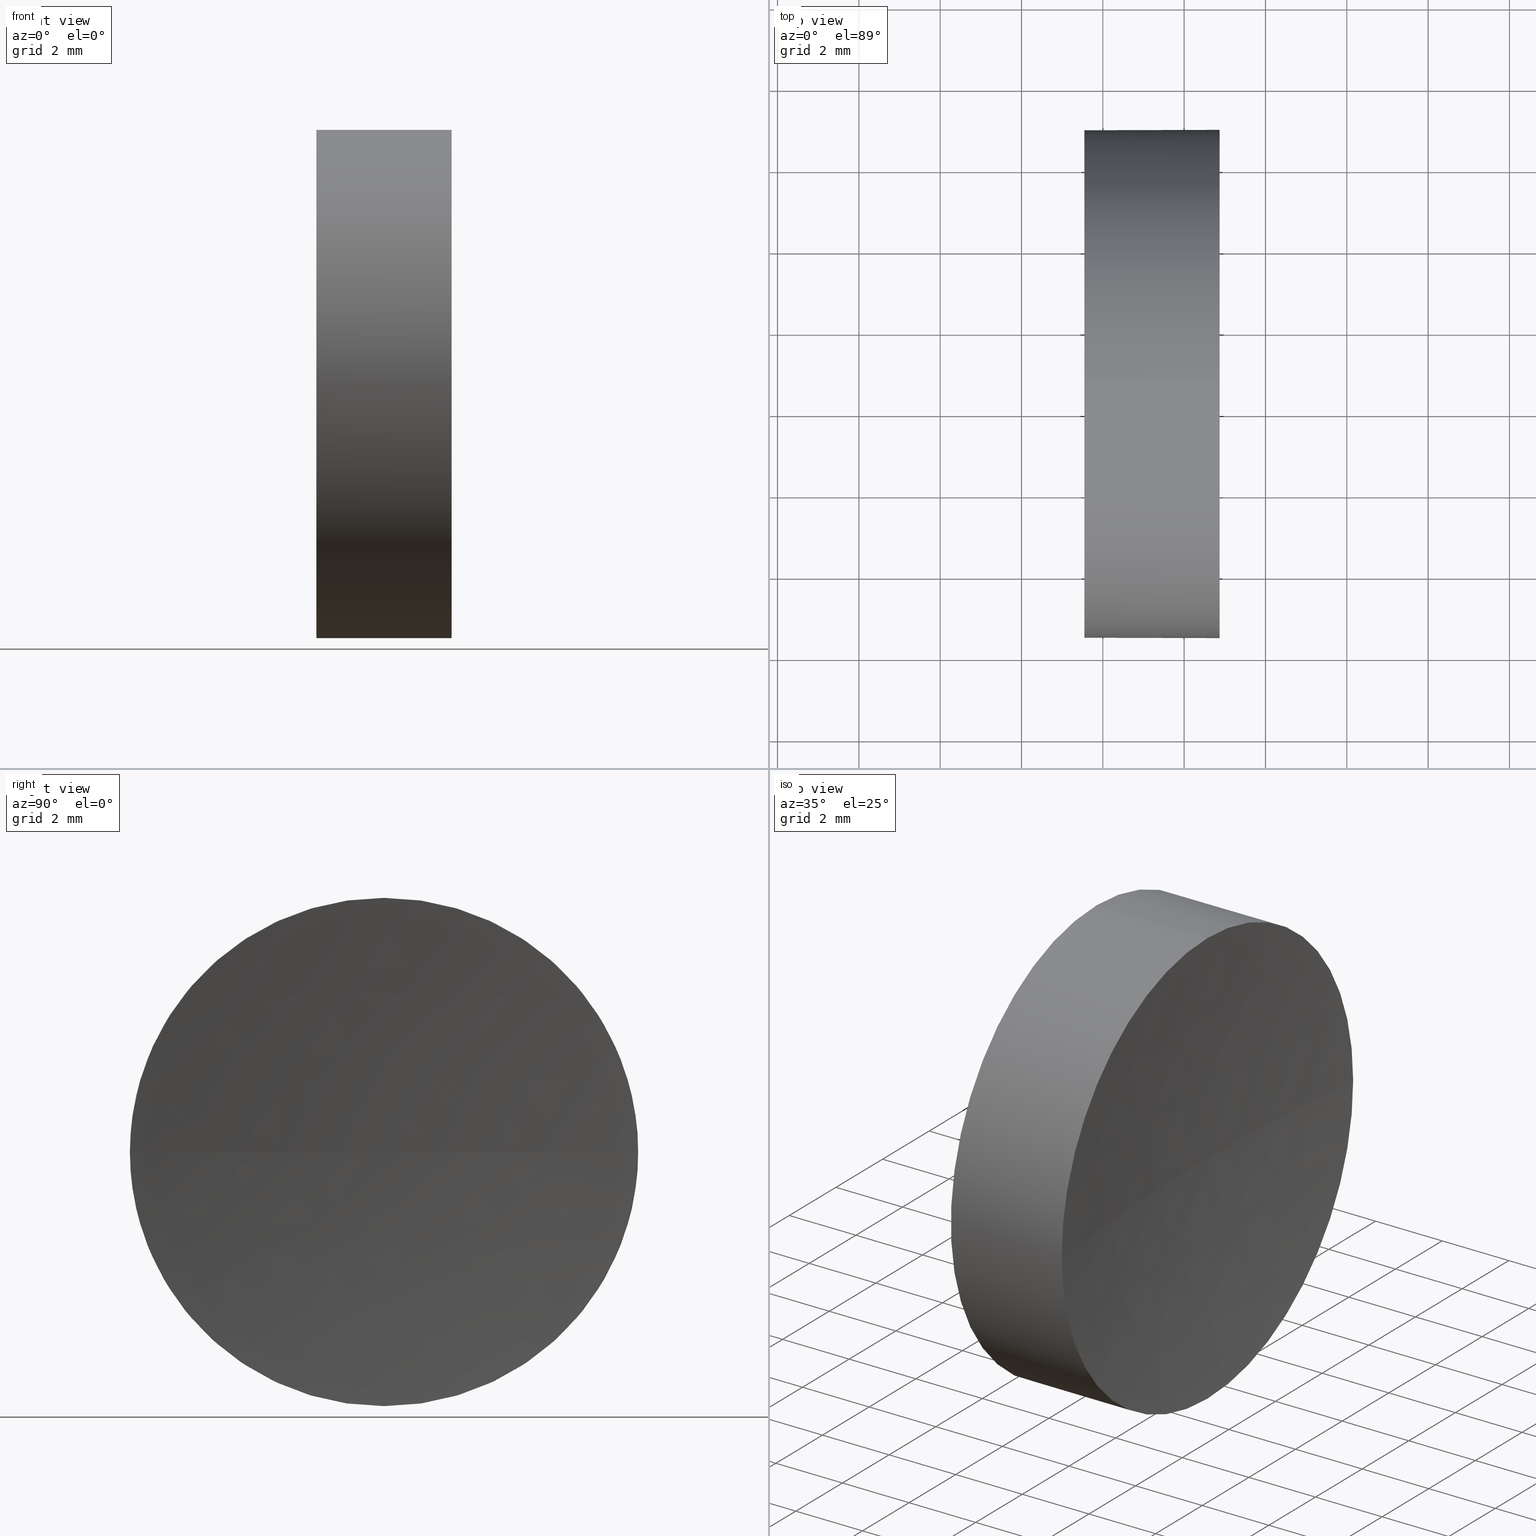
[diagram: canonical four-view strip — front | top / right | iso, engineering-drawing reading convention]
A machine part, canonical four-view strip (front | top / right | iso — engineering-drawing reading convention). The complete STEP part file that produces these views, byte-faithful:
ISO-10303-21;
HEADER;
FILE_DESCRIPTION (( 'STEP AP214' ),
    '1' );
FILE_NAME ('270005.STEP',
    '2019-07-22T02:30:44',
    ( '' ),
    ( '' ),
    'SwSTEP 2.0',
    'SolidWorks 2016',
    '' );
FILE_SCHEMA (( 'AUTOMOTIVE_DESIGN' ));
ENDSEC;

DATA;
#1 = CARTESIAN_POINT ( 'NONE',  ( 120.5463276019670400, 34.68901056168622400, 0.0000000000000000000 ) ) ;
#2 = CIRCLE ( 'NONE', #29, 6.249999999999998200 ) ;
#3 =( GEOMETRIC_REPRESENTATION_CONTEXT ( 3 ) GLOBAL_UNCERTAINTY_ASSIGNED_CONTEXT ( ( #155 ) ) GLOBAL_UNIT_ASSIGNED_CONTEXT ( ( #65, #32, #163 ) ) REPRESENTATION_CONTEXT ( 'NONE', 'WORKASPACE' ) );
#4 = CARTESIAN_POINT ( 'NONE',  ( 54.49257150108255100, 34.68901056168621700, 0.0000000000000000000 ) ) ;
#5 = MANIFOLD_SOLID_BREP ( '��ת1', #125 ) ;
#6 = ORIENTED_EDGE ( 'NONE', *, *, #128, .F. ) ;
#7 = DIRECTION ( 'NONE',  ( 0.0000000000000000000, 0.0000000000000000000, 1.000000000000000000 ) ) ;
#8 = DIRECTION ( 'NONE',  ( 0.0000000000000000000, 0.0000000000000000000, 1.000000000000000000 ) ) ;
#9 = CARTESIAN_POINT ( 'NONE',  ( 54.49257150108255100, 34.68901056168621700, 6.250000000000005300 ) ) ;
#10 = DIRECTION ( 'NONE',  ( 0.0000000000000000000, -1.000000000000000000, 0.0000000000000000000 ) ) ;
#11 = CIRCLE ( 'NONE', #79, 6.250000000000012400 ) ;
#12 = CARTESIAN_POINT ( 'NONE',  ( 57.54632776745975800, 34.68901056168621700, -6.249999999999998200 ) ) ;
#13 =( LENGTH_UNIT ( ) NAMED_UNIT ( * ) SI_UNIT ( .MILLI., .METRE. ) );
#14 = ORIENTED_EDGE ( 'NONE', *, *, #84, .T. ) ;
#15 = EDGE_CURVE ( 'NONE', #175, #169, #27, .T. ) ;
#16 = FILL_AREA_STYLE_COLOUR ( '', #127 ) ;
#17 =( GEOMETRIC_REPRESENTATION_CONTEXT ( 3 ) GLOBAL_UNCERTAINTY_ASSIGNED_CONTEXT ( ( #45 ) ) GLOBAL_UNIT_ASSIGNED_CONTEXT ( ( #170, #56, #99 ) ) REPRESENTATION_CONTEXT ( 'NONE', 'WORKASPACE' ) );
#18 = SURFACE_STYLE_FILL_AREA ( #47 ) ;
#19 = ORIENTED_EDGE ( 'NONE', *, *, #133, .T. ) ;
#20 = SURFACE_SIDE_STYLE ('',( #18 ) ) ;
#21 = AXIS2_PLACEMENT_3D ( 'NONE', #34, #181, #8 ) ;
#22 = CARTESIAN_POINT ( 'NONE',  ( 120.5463276019670400, 34.68901056168622400, 0.0000000000000000000 ) ) ;
#23 = EDGE_LOOP ( 'NONE', ( #43, #126 ) ) ;
#24 = DIRECTION ( 'NONE',  ( -1.000000000000000000, -0.0000000000000000000, -0.0000000000000000000 ) ) ;
#25 = CARTESIAN_POINT ( 'NONE',  ( 60.87273629056698400, 34.68901056168621700, 0.0000000000000000000 ) ) ;
#26 = ORIENTED_EDGE ( 'NONE', *, *, #68, .T. ) ;
#27 = LINE ( 'NONE', #105, #30 ) ;
#28 = ORIENTED_EDGE ( 'NONE', *, *, #15, .T. ) ;
#29 = AXIS2_PLACEMENT_3D ( 'NONE', #119, #132, #66 ) ;
#30 = VECTOR ( 'NONE', #116, 1000.000000000000000 ) ;
#31 = ORIENTED_EDGE ( 'NONE', *, *, #84, .F. ) ;
#32 =( NAMED_UNIT ( * ) PLANE_ANGLE_UNIT ( ) SI_UNIT ( $, .RADIAN. ) );
#33 = MECHANICAL_DESIGN_GEOMETRIC_PRESENTATION_REPRESENTATION (  '', ( #50 ), #3 ) ;
#34 = CARTESIAN_POINT ( 'NONE',  ( 60.87273629056698400, 34.68901056168621700, 0.0000000000000000000 ) ) ;
#35 = CARTESIAN_POINT ( 'NONE',  ( 60.87273629056698400, 28.43901056168619900, 0.0000000000000000000 ) ) ;
#36 = DIRECTION ( 'NONE',  ( 1.000000000000000000, 0.0000000000000000000, 0.0000000000000000000 ) ) ;
#37 = SURFACE_STYLE_USAGE ( .BOTH. , #141 ) ;
#38 = ADVANCED_FACE ( 'NONE', ( #136 ), #100, .T. ) ;
#39 = PRESENTATION_STYLE_ASSIGNMENT (( #63 ) ) ;
#40 = AXIS2_PLACEMENT_3D ( 'NONE', #152, #110, #53 ) ;
#41 =( NAMED_UNIT ( * ) PLANE_ANGLE_UNIT ( ) SI_UNIT ( $, .RADIAN. ) );
#42 = CIRCLE ( 'NONE', #97, 60.00000000000000700 ) ;
#43 = ORIENTED_EDGE ( 'NONE', *, *, #128, .T. ) ;
#44 = CIRCLE ( 'NONE', #182, 60.00000000000000700 ) ;
#45 = UNCERTAINTY_MEASURE_WITH_UNIT (LENGTH_MEASURE( 1.000000000000000100E-005 ), #170, 'distance_accuracy_value', 'NONE');
#46 = CARTESIAN_POINT ( 'NONE',  ( 54.49257150108255100, 34.68901056168621700, 0.0000000000000000000 ) ) ;
#47 = FILL_AREA_STYLE ('',( #104 ) ) ;
#48 = ORIENTED_EDGE ( 'NONE', *, *, #143, .F. ) ;
#49 = DIRECTION ( 'NONE',  ( -1.000000000000000000, -0.0000000000000000000, -0.0000000000000000000 ) ) ;
#50 = STYLED_ITEM ( 'NONE', ( #39 ), #5 ) ;
#51 = DIRECTION ( 'NONE',  ( 0.0000000000000000000, -1.000000000000000000, 0.0000000000000000000 ) ) ;
#52 = CIRCLE ( 'NONE', #40, 6.250000000000012400 ) ;
#53 = DIRECTION ( 'NONE',  ( 0.0000000000000000000, 0.0000000000000000000, 1.000000000000000000 ) ) ;
#54 = DIRECTION ( 'NONE',  ( 0.0000000000000000000, -1.000000000000000000, -1.224646799147353200E-016 ) ) ;
#55 = PRODUCT_DEFINITION ( 'δ֪', '', #75, #176 ) ;
#56 =( NAMED_UNIT ( * ) PLANE_ANGLE_UNIT ( ) SI_UNIT ( $, .RADIAN. ) );
#57 = APPLICATION_PROTOCOL_DEFINITION ( 'draft international standard', 'automotive_design', 1998, #86 ) ;
#58 = ADVANCED_FACE ( 'NONE', ( #148 ), #87, .T. ) ;
#59 = ORIENTED_EDGE ( 'NONE', *, *, #153, .F. ) ;
#60 = AXIS2_PLACEMENT_3D ( 'NONE', #108, #83, #180 ) ;
#61 = ORIENTED_EDGE ( 'NONE', *, *, #149, .F. ) ;
#62 = AXIS2_PLACEMENT_3D ( 'NONE', #135, #24, #122 ) ;
#63 = SURFACE_STYLE_USAGE ( .BOTH. , #20 ) ;
#64 = AXIS2_PLACEMENT_3D ( 'NONE', #46, #118, #77 ) ;
#65 =( LENGTH_UNIT ( ) NAMED_UNIT ( * ) SI_UNIT ( .MILLI., .METRE. ) );
#66 = DIRECTION ( 'NONE',  ( 0.0000000000000000000, 0.0000000000000000000, 1.000000000000000000 ) ) ;
#67 = CARTESIAN_POINT ( 'NONE',  ( 120.5463276019670400, 34.68901056168622400, 0.0000000000000000000 ) ) ;
#68 = EDGE_CURVE ( 'NONE', #184, #175, #130, .T. ) ;
#69 = SURFACE_STYLE_FILL_AREA ( #171 ) ;
#70 = CARTESIAN_POINT ( 'NONE',  ( 120.5463276019670400, 34.68901056168622400, 0.0000000000000000000 ) ) ;
#71 = ADVANCED_FACE ( 'NONE', ( #121 ), #154, .F. ) ;
#72 = SHAPE_DEFINITION_REPRESENTATION ( #158, #174 ) ;
#73 = AXIS2_PLACEMENT_3D ( 'NONE', #92, #140, #36 ) ;
#74 = ADVANCED_FACE ( 'NONE', ( #89 ), #173, .F. ) ;
#75 = PRODUCT_DEFINITION_FORMATION_WITH_SPECIFIED_SOURCE ( '�κ�', '', #168, .NOT_KNOWN. ) ;
#76 = DIRECTION ( 'NONE',  ( 0.0000000000000000000, 0.0000000000000000000, 1.000000000000000000 ) ) ;
#77 = DIRECTION ( 'NONE',  ( 0.0000000000000000000, 0.0000000000000000000, 1.000000000000000000 ) ) ;
#78 = ORIENTED_EDGE ( 'NONE', *, *, #133, .F. ) ;
#79 = AXIS2_PLACEMENT_3D ( 'NONE', #25, #80, #107 ) ;
#80 = DIRECTION ( 'NONE',  ( -1.000000000000000000, -0.0000000000000000000, -0.0000000000000000000 ) ) ;
#81 = DIRECTION ( 'NONE',  ( 0.0000000000000000000, 0.0000000000000000000, 1.000000000000000000 ) ) ;
#82 = VECTOR ( 'NONE', #123, 1000.000000000000000 ) ;
#83 = DIRECTION ( 'NONE',  ( -1.000000000000000000, -0.0000000000000000000, -0.0000000000000000000 ) ) ;
#84 = EDGE_CURVE ( 'NONE', #101, #96, #44, .T. ) ;
#85 = ORIENTED_EDGE ( 'NONE', *, *, #143, .T. ) ;
#86 = APPLICATION_CONTEXT ( 'automotive_design' ) ;
#87 = CYLINDRICAL_SURFACE ( 'NONE', #64, 6.250000000000005300 ) ;
#88 = EDGE_LOOP ( 'NONE', ( #26, #28, #6, #59, #19 ) ) ;
#89 = FACE_OUTER_BOUND ( 'NONE', #131, .T. ) ;
#90 = AXIS2_PLACEMENT_3D ( 'NONE', #4, #49, #7 ) ;
#91 = UNCERTAINTY_MEASURE_WITH_UNIT (LENGTH_MEASURE( 1.000000000000000100E-005 ), #13, 'distance_accuracy_value', 'NONE');
#92 = CARTESIAN_POINT ( 'NONE',  ( 0.0000000000000000000, 0.0000000000000000000, 0.0000000000000000000 ) ) ;
#93 = ORIENTED_EDGE ( 'NONE', *, *, #68, .F. ) ;
#94 = PLANE ( 'NONE',  #114 ) ;
#95 = PRODUCT_CONTEXT ( 'NONE', #142, 'mechanical' ) ;
#96 = VERTEX_POINT ( 'NONE', #151 ) ;
#97 = AXIS2_PLACEMENT_3D ( 'NONE', #70, #137, #54 ) ;
#98 = ORIENTED_EDGE ( 'NONE', *, *, #149, .T. ) ;
#99 =( NAMED_UNIT ( * ) SI_UNIT ( $, .STERADIAN. ) SOLID_ANGLE_UNIT ( ) );
#100 = CYLINDRICAL_SURFACE ( 'NONE', #90, 6.250000000000005300 ) ;
#101 = VERTEX_POINT ( 'NONE', #35 ) ;
#102 = PRESENTATION_STYLE_ASSIGNMENT (( #37 ) ) ;
#103 = AXIS2_PLACEMENT_3D ( 'NONE', #1, #76, #51 ) ;
#104 = FILL_AREA_STYLE_COLOUR ( '', #145 ) ;
#105 = CARTESIAN_POINT ( 'NONE',  ( 54.49257150108255100, 34.68901056168621700, -6.250000000000005300 ) ) ;
#106 = EDGE_CURVE ( 'NONE', #169, #129, #178, .T. ) ;
#107 = DIRECTION ( 'NONE',  ( 0.0000000000000000000, 0.0000000000000000000, 1.000000000000000000 ) ) ;
#108 = CARTESIAN_POINT ( 'NONE',  ( 60.87273629056698400, 34.68901056168621700, 0.0000000000000000000 ) ) ;
#109 = ORIENTED_EDGE ( 'NONE', *, *, #161, .T. ) ;
#110 = DIRECTION ( 'NONE',  ( -1.000000000000000000, -0.0000000000000000000, -0.0000000000000000000 ) ) ;
#111 =( NAMED_UNIT ( * ) SI_UNIT ( $, .STERADIAN. ) SOLID_ANGLE_UNIT ( ) );
#112 = AXIS2_PLACEMENT_3D ( 'NONE', #67, #81, #10 ) ;
#113 = EDGE_LOOP ( 'NONE', ( #185, #78, #61, #14 ) ) ;
#114 = AXIS2_PLACEMENT_3D ( 'NONE', #166, #156, #157 ) ;
#115 = LINE ( 'NONE', #9, #82 ) ;
#116 = DIRECTION ( 'NONE',  ( -1.000000000000000000, -0.0000000000000000000, -0.0000000000000000000 ) ) ;
#117 = STYLED_ITEM ( 'NONE', ( #102 ), #174 ) ;
#118 = DIRECTION ( 'NONE',  ( -1.000000000000000000, -0.0000000000000000000, -0.0000000000000000000 ) ) ;
#119 = CARTESIAN_POINT ( 'NONE',  ( 57.54632776745975800, 34.68901056168621700, 0.0000000000000000000 ) ) ;
#120 = CARTESIAN_POINT ( 'NONE',  ( 60.87273629056698400, 34.68901056168621700, 6.250000000000012400 ) ) ;
#121 = FACE_OUTER_BOUND ( 'NONE', #113, .T. ) ;
#122 = DIRECTION ( 'NONE',  ( 0.0000000000000000000, 0.0000000000000000000, 1.000000000000000000 ) ) ;
#123 = DIRECTION ( 'NONE',  ( -1.000000000000000000, -0.0000000000000000000, -0.0000000000000000000 ) ) ;
#124 = DIRECTION ( 'NONE',  ( 0.0000000000000000000, 0.0000000000000000000, -1.000000000000000000 ) ) ;
#125 = CLOSED_SHELL ( 'NONE', ( #58, #74, #71, #38, #186 ) ) ;
#126 = ORIENTED_EDGE ( 'NONE', *, *, #106, .T. ) ;
#127 = COLOUR_RGB ( '',1.000000000000000000, 1.000000000000000000, 1.000000000000000000 ) ;
#128 = EDGE_CURVE ( 'NONE', #129, #169, #2, .T. ) ;
#129 = VERTEX_POINT ( 'NONE', #167 ) ;
#130 = CIRCLE ( 'NONE', #21, 6.250000000000012400 ) ;
#131 = EDGE_LOOP ( 'NONE', ( #93, #109, #31, #48 ) ) ;
#132 = DIRECTION ( 'NONE',  ( -1.000000000000000000, -0.0000000000000000000, -0.0000000000000000000 ) ) ;
#133 = EDGE_CURVE ( 'NONE', #160, #184, #52, .T. ) ;
#134 = ORIENTED_EDGE ( 'NONE', *, *, #15, .F. ) ;
#135 = CARTESIAN_POINT ( 'NONE',  ( 57.54632776745975800, 34.68901056168621700, 0.0000000000000000000 ) ) ;
#136 = FACE_OUTER_BOUND ( 'NONE', #165, .T. ) ;
#137 = DIRECTION ( 'NONE',  ( 0.0000000000000000000, -1.224646799147353200E-016, 1.000000000000000000 ) ) ;
#138 = APPLICATION_PROTOCOL_DEFINITION ( 'draft international standard', 'automotive_design', 1998, #142 ) ;
#139 = PRESENTATION_LAYER_ASSIGNMENT (  '', '', ( #50 ) ) ;
#140 = DIRECTION ( 'NONE',  ( 0.0000000000000000000, 0.0000000000000000000, 1.000000000000000000 ) ) ;
#141 = SURFACE_SIDE_STYLE ('',( #69 ) ) ;
#142 = APPLICATION_CONTEXT ( 'automotive_design' ) ;
#143 = EDGE_CURVE ( 'NONE', #175, #101, #159, .T. ) ;
#144 = FACE_OUTER_BOUND ( 'NONE', #23, .T. ) ;
#145 = COLOUR_RGB ( '',1.000000000000000000, 1.000000000000000000, 1.000000000000000000 ) ;
#146 = ORIENTED_EDGE ( 'NONE', *, *, #153, .T. ) ;
#147 =( GEOMETRIC_REPRESENTATION_CONTEXT ( 3 ) GLOBAL_UNCERTAINTY_ASSIGNED_CONTEXT ( ( #91 ) ) GLOBAL_UNIT_ASSIGNED_CONTEXT ( ( #13, #41, #111 ) ) REPRESENTATION_CONTEXT ( 'NONE', 'WORKASPACE' ) );
#148 = FACE_OUTER_BOUND ( 'NONE', #88, .T. ) ;
#149 = EDGE_CURVE ( 'NONE', #101, #160, #11, .T. ) ;
#150 = DIRECTION ( 'NONE',  ( -1.000000000000000000, 0.0000000000000000000, 0.0000000000000000000 ) ) ;
#151 = CARTESIAN_POINT ( 'NONE',  ( 60.54632760196703600, 34.68901056168621700, 0.0000000000000000000 ) ) ;
#152 = CARTESIAN_POINT ( 'NONE',  ( 60.87273629056698400, 34.68901056168621700, 0.0000000000000000000 ) ) ;
#153 = EDGE_CURVE ( 'NONE', #160, #129, #115, .T. ) ;
#154 = SPHERICAL_SURFACE ( 'NONE', #103, 60.00000000000000700 ) ;
#155 = UNCERTAINTY_MEASURE_WITH_UNIT (LENGTH_MEASURE( 1.000000000000000100E-005 ), #65, 'distance_accuracy_value', 'NONE');
#156 = DIRECTION ( 'NONE',  ( 1.000000000000000000, 0.0000000000000000000, 0.0000000000000000000 ) ) ;
#157 = DIRECTION ( 'NONE',  ( 0.0000000000000000000, 0.0000000000000000000, -1.000000000000000000 ) ) ;
#158 = PRODUCT_DEFINITION_SHAPE ( 'NONE', 'NONE',  #55 ) ;
#159 = CIRCLE ( 'NONE', #60, 6.250000000000012400 ) ;
#160 = VERTEX_POINT ( 'NONE', #120 ) ;
#161 = EDGE_CURVE ( 'NONE', #184, #96, #42, .T. ) ;
#162 = PRODUCT_RELATED_PRODUCT_CATEGORY ( 'part', '', ( #168 ) ) ;
#163 =( NAMED_UNIT ( * ) SI_UNIT ( $, .STERADIAN. ) SOLID_ANGLE_UNIT ( ) );
#164 = PRESENTATION_LAYER_ASSIGNMENT (  '', '', ( #117 ) ) ;
#165 = EDGE_LOOP ( 'NONE', ( #134, #85, #98, #146, #172 ) ) ;
#166 = CARTESIAN_POINT ( 'NONE',  ( 57.54632776745975800, 34.68901056168621700, 0.0000000000000000000 ) ) ;
#167 = CARTESIAN_POINT ( 'NONE',  ( 57.54632776745975800, 34.68901056168621700, 6.249999999999998200 ) ) ;
#168 = PRODUCT ( '270005', '270005', '', ( #95 ) ) ;
#169 = VERTEX_POINT ( 'NONE', #12 ) ;
#170 =( LENGTH_UNIT ( ) NAMED_UNIT ( * ) SI_UNIT ( .MILLI., .METRE. ) );
#171 = FILL_AREA_STYLE ('',( #16 ) ) ;
#172 = ORIENTED_EDGE ( 'NONE', *, *, #106, .F. ) ;
#173 = SPHERICAL_SURFACE ( 'NONE', #112, 60.00000000000000700 ) ;
#174 = ADVANCED_BREP_SHAPE_REPRESENTATION ( '270005', ( #5, #73 ), #147 ) ;
#175 = VERTEX_POINT ( 'NONE', #179 ) ;
#176 = PRODUCT_DEFINITION_CONTEXT ( 'detailed design', #86, 'design' ) ;
#177 = MECHANICAL_DESIGN_GEOMETRIC_PRESENTATION_REPRESENTATION (  '', ( #117 ), #17 ) ;
#178 = CIRCLE ( 'NONE', #62, 6.249999999999998200 ) ;
#179 = CARTESIAN_POINT ( 'NONE',  ( 60.87273629056698400, 34.68901056168621700, -6.250000000000012400 ) ) ;
#180 = DIRECTION ( 'NONE',  ( 0.0000000000000000000, 0.0000000000000000000, 1.000000000000000000 ) ) ;
#181 = DIRECTION ( 'NONE',  ( -1.000000000000000000, -0.0000000000000000000, -0.0000000000000000000 ) ) ;
#182 = AXIS2_PLACEMENT_3D ( 'NONE', #22, #124, #150 ) ;
#183 = CARTESIAN_POINT ( 'NONE',  ( 60.87273629056698400, 40.93901056168625300, 7.654042494670984200E-016 ) ) ;
#184 = VERTEX_POINT ( 'NONE', #183 ) ;
#185 = ORIENTED_EDGE ( 'NONE', *, *, #161, .F. ) ;
#186 = ADVANCED_FACE ( 'NONE', ( #144 ), #94, .F. ) ;
ENDSEC;
END-ISO-10303-21;
